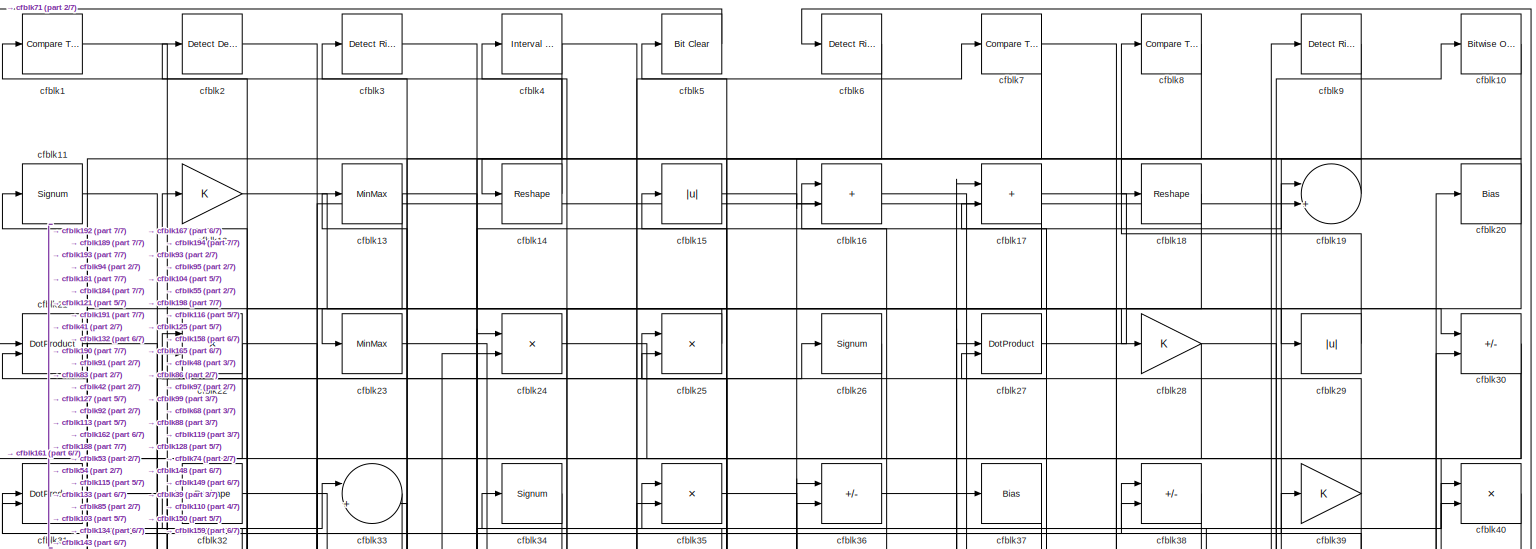
[diagram: root canvas - part 1/7, full width, top band]
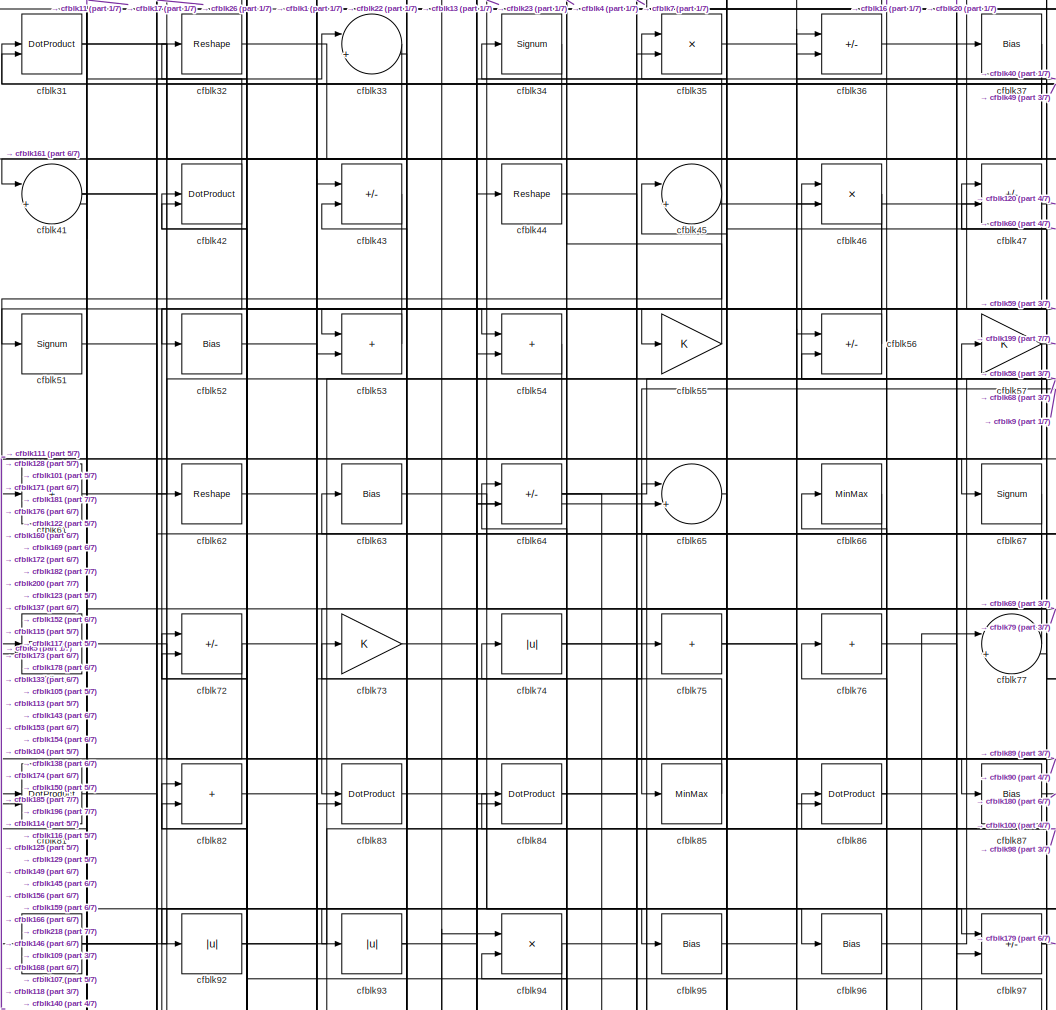
[diagram: root canvas - part 2/7, top center region]
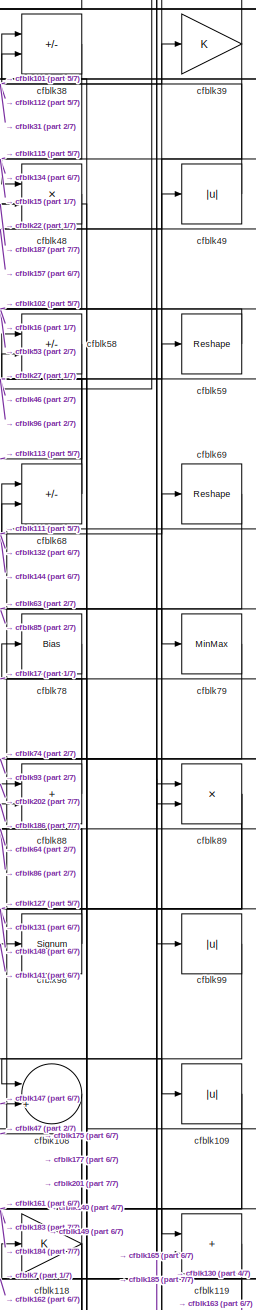
[diagram: root canvas - part 3/7, middle right region]
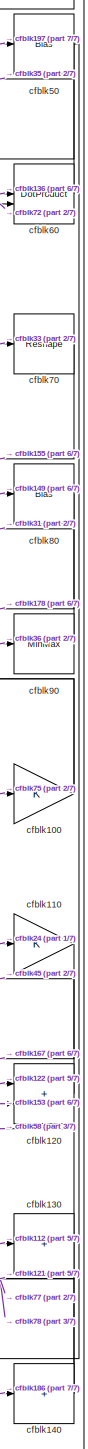
[diagram: root canvas - part 4/7, middle right region]
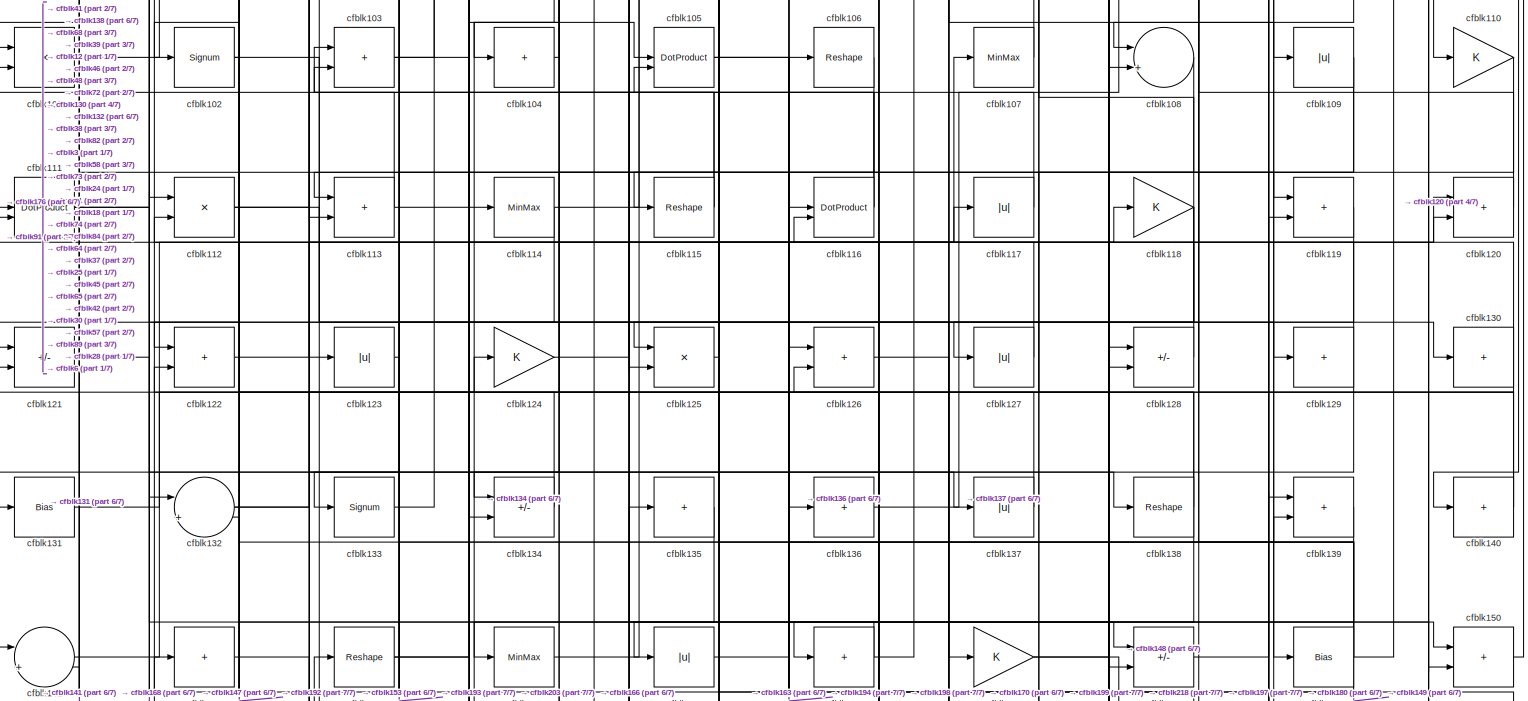
[diagram: root canvas - part 5/7, full width, middle band]
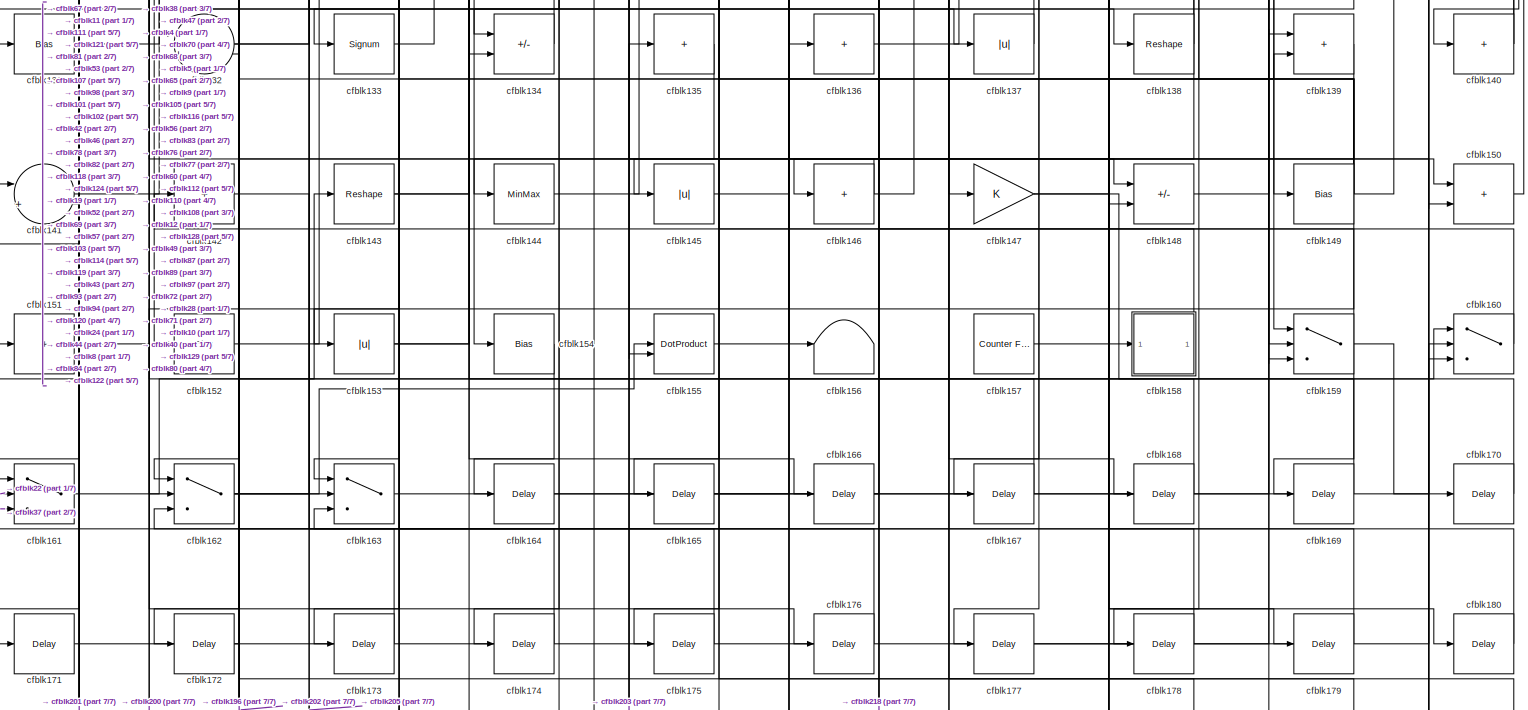
[diagram: root canvas - part 6/7, full width, bottom band]
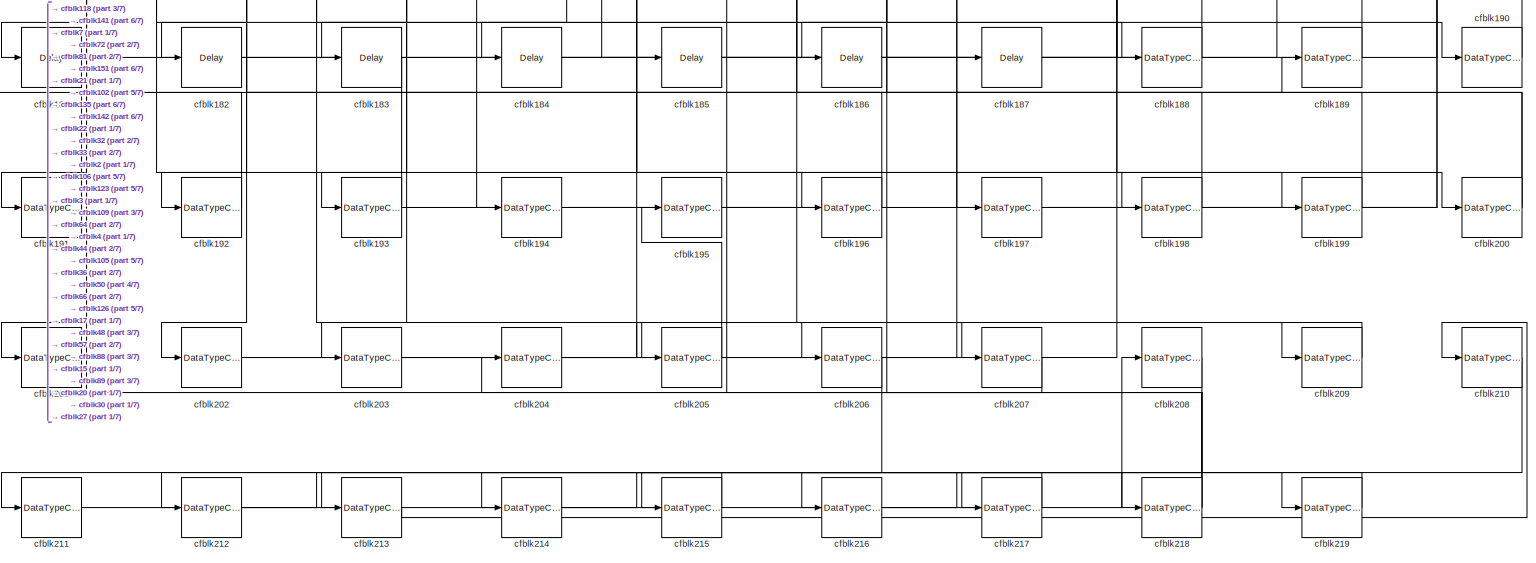
[diagram: root canvas - part 7/7, full width, bottom band]
MODEL slx_9bab4021628a
KIND model
CONFIG AbsTol = auto
CONFIG EnableMultiTasking = off
CONFIG FixedStep = auto
CONFIG MaxStep = auto
CONFIG MinStep = auto
CONFIG RelTol = 1e-3
CONFIG SampleTimeConstraint = Unconstrained
CONFIG SolverName = VariableStepAuto
CONFIG StartTime = 0.0
CONFIG StopTime = 10.0
BLOCK [Reference] cfblk1  REF=hdlsllib/Logic and Bit
Operations/Compare
To Constant
  SourceBlock = hdlsllib/Logic and Bit\nOperations/Compare\nTo Constant
  SourceType = Compare To Constant
BLOCK [Reference] cfblk10  REF=simulink/Logic and Bit
Operations/Bitwise
Operator
  LibrarySourceBlock = hdlsllib/Logic and Bit\nOperations/Bitwise\nOperator
  SourceBlock = simulink/Logic and Bit\nOperations/Bitwise\nOperator
  SourceType = Bitwise Operator
BLOCK [Gain] cfblk100
BLOCK [Product] cfblk101
  Inputs = */
  RndMeth = Zero
  SaturateOnIntegerOverflow = on
BLOCK [Signum] cfblk102
BLOCK [Sum] cfblk103
  IconShape = rectangular
BLOCK [Sum] cfblk104
  IconShape = rectangular
  Inputs = +
BLOCK [DotProduct] cfblk105
  OutDataTypeStr = Inherit: Inherit via internal rule
BLOCK [Reshape] cfblk106
BLOCK [MinMax] cfblk107
BLOCK [Sum] cfblk108
  Inputs = |++
BLOCK [Abs] cfblk109
  SaturateOnIntegerOverflow = off
BLOCK [Signum] cfblk11
BLOCK [Gain] cfblk110
BLOCK [DotProduct] cfblk111
  OutDataTypeStr = Inherit: Inherit via internal rule
BLOCK [Product] cfblk112
  Inputs = */
  RndMeth = Zero
  SaturateOnIntegerOverflow = on
BLOCK [Sum] cfblk113
  IconShape = rectangular
BLOCK [MinMax] cfblk114
BLOCK [Reshape] cfblk115
BLOCK [DotProduct] cfblk116
  OutDataTypeStr = Inherit: Inherit via internal rule
BLOCK [Abs] cfblk117
  SaturateOnIntegerOverflow = off
BLOCK [Gain] cfblk118
BLOCK [Sum] cfblk119
  IconShape = rectangular
BLOCK [Gain] cfblk12
BLOCK [Sum] cfblk120
  IconShape = rectangular
BLOCK [Sum] cfblk121
  IconShape = rectangular
  Inputs = +-
BLOCK [Sum] cfblk122
  IconShape = rectangular
BLOCK [Abs] cfblk123
  SaturateOnIntegerOverflow = off
BLOCK [Gain] cfblk124
BLOCK [Product] cfblk125
  Inputs = */
  RndMeth = Zero
  SaturateOnIntegerOverflow = on
BLOCK [Sum] cfblk126
  IconShape = rectangular
BLOCK [Abs] cfblk127
  SaturateOnIntegerOverflow = off
BLOCK [Sum] cfblk128
  IconShape = rectangular
  Inputs = +-
BLOCK [Sum] cfblk129
  IconShape = rectangular
  Inputs = +
BLOCK [MinMax] cfblk13
BLOCK [Sum] cfblk130
  IconShape = rectangular
  Inputs = +
BLOCK [Bias] cfblk131
  Bias = 0.0
  SaturateOnIntegerOverflow = off
BLOCK [Sum] cfblk132
  Inputs = |++
BLOCK [Signum] cfblk133
BLOCK [Sum] cfblk134
  IconShape = rectangular
  Inputs = +-
BLOCK [Sum] cfblk135
  IconShape = rectangular
  Inputs = +
BLOCK [Sum] cfblk136
  IconShape = rectangular
  Inputs = +
BLOCK [Abs] cfblk137
  SaturateOnIntegerOverflow = off
BLOCK [Reshape] cfblk138
BLOCK [Sum] cfblk139
  IconShape = rectangular
BLOCK [Reshape] cfblk14
BLOCK [Sum] cfblk140
  IconShape = rectangular
  Inputs = +
BLOCK [Sum] cfblk141
  Inputs = |++
BLOCK [Sum] cfblk142
  IconShape = rectangular
  Inputs = +
BLOCK [Reshape] cfblk143
BLOCK [MinMax] cfblk144
BLOCK [Abs] cfblk145
  SaturateOnIntegerOverflow = off
BLOCK [Sum] cfblk146
  IconShape = rectangular
  Inputs = +
BLOCK [Gain] cfblk147
BLOCK [Sum] cfblk148
  IconShape = rectangular
  Inputs = +-
BLOCK [Bias] cfblk149
  Bias = 0.0
  SaturateOnIntegerOverflow = off
BLOCK [Abs] cfblk15
  SaturateOnIntegerOverflow = off
BLOCK [Sum] cfblk150
  IconShape = rectangular
BLOCK [Sum] cfblk151
  IconShape = rectangular
  Inputs = +
BLOCK [Bias] cfblk152
  Bias = 0.0
  SaturateOnIntegerOverflow = off
BLOCK [Abs] cfblk153
  SaturateOnIntegerOverflow = off
BLOCK [Bias] cfblk154
  Bias = 0.0
  SaturateOnIntegerOverflow = off
BLOCK [DotProduct] cfblk155
  OutDataTypeStr = Inherit: Inherit via internal rule
BLOCK [Terminator] cfblk156
BLOCK [Reference] cfblk157  REF=hdlsllib/Sources/Counter
Free-Running
  SourceBlock = hdlsllib/Sources/Counter\nFree-Running
  SourceType = Counter Free-Running
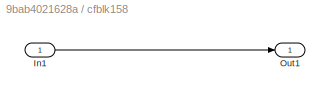
BLOCK [SubSystem] cfblk158
  LibrarySourceBlock = hdlsllib/Ports &\nSubsystems/Subsystem
BLOCK [Inport] cfblk158/In1
BLOCK [Outport] cfblk158/Out1
BLOCK [Switch] cfblk159
  InputSameDT = off
  SaturateOnIntegerOverflow = off
BLOCK [Sum] cfblk16
  IconShape = rectangular
BLOCK [Switch] cfblk160
  InputSameDT = off
  SaturateOnIntegerOverflow = off
BLOCK [Switch] cfblk161
  InputSameDT = off
  SaturateOnIntegerOverflow = off
BLOCK [Switch] cfblk162
  InputSameDT = off
  SaturateOnIntegerOverflow = off
BLOCK [Switch] cfblk163
  InputSameDT = off
  SaturateOnIntegerOverflow = off
BLOCK [Delay] cfblk164
  InputPortMap = u0
  SampleTime = 1
BLOCK [Delay] cfblk165
  InputPortMap = u0
  SampleTime = 1
BLOCK [Delay] cfblk166
  InputPortMap = u0
  SampleTime = 1
BLOCK [Delay] cfblk167
  InputPortMap = u0
  SampleTime = 1
BLOCK [Delay] cfblk168
  InputPortMap = u0
  SampleTime = 1
BLOCK [Delay] cfblk169
  InputPortMap = u0
  SampleTime = 1
BLOCK [Sum] cfblk17
  IconShape = rectangular
BLOCK [Delay] cfblk170
  InputPortMap = u0
  SampleTime = 1
BLOCK [Delay] cfblk171
  InputPortMap = u0
  SampleTime = 1
BLOCK [Delay] cfblk172
  InputPortMap = u0
  SampleTime = 1
BLOCK [Delay] cfblk173
  InputPortMap = u0
  SampleTime = 1
BLOCK [Delay] cfblk174
  InputPortMap = u0
  SampleTime = 1
BLOCK [Delay] cfblk175
  InputPortMap = u0
  SampleTime = 1
BLOCK [Delay] cfblk176
  InputPortMap = u0
  SampleTime = 1
BLOCK [Delay] cfblk177
  InputPortMap = u0
  SampleTime = 1
BLOCK [Delay] cfblk178
  InputPortMap = u0
  SampleTime = 1
BLOCK [Delay] cfblk179
  InputPortMap = u0
  SampleTime = 1
BLOCK [Reshape] cfblk18
BLOCK [Delay] cfblk180
  InputPortMap = u0
  SampleTime = 1
BLOCK [Delay] cfblk181
  InputPortMap = u0
  SampleTime = 1
BLOCK [Delay] cfblk182
  InputPortMap = u0
  SampleTime = 1
BLOCK [Delay] cfblk183
  InputPortMap = u0
  SampleTime = 1
BLOCK [Delay] cfblk184
  InputPortMap = u0
  SampleTime = 1
BLOCK [Delay] cfblk185
  InputPortMap = u0
  SampleTime = 1
BLOCK [Delay] cfblk186
  InputPortMap = u0
  SampleTime = 1
BLOCK [Delay] cfblk187
  InputPortMap = u0
  SampleTime = 1
BLOCK [DataTypeConversion] cfblk188
  OutDataTypeStr = uint8
  RndMeth = Floor
  SaturateOnIntegerOverflow = off
BLOCK [DataTypeConversion] cfblk189
  OutDataTypeStr = uint8
  RndMeth = Floor
  SaturateOnIntegerOverflow = off
BLOCK [Sum] cfblk19
  Inputs = |++
BLOCK [DataTypeConversion] cfblk190
  OutDataTypeStr = uint8
  RndMeth = Floor
  SaturateOnIntegerOverflow = off
BLOCK [DataTypeConversion] cfblk191
  OutDataTypeStr = uint8
  RndMeth = Floor
  SaturateOnIntegerOverflow = off
BLOCK [DataTypeConversion] cfblk192
  OutDataTypeStr = uint8
  RndMeth = Floor
  SaturateOnIntegerOverflow = off
BLOCK [DataTypeConversion] cfblk193
  RndMeth = Floor
  SaturateOnIntegerOverflow = off
BLOCK [DataTypeConversion] cfblk194
  OutDataTypeStr = uint8
  RndMeth = Floor
  SaturateOnIntegerOverflow = off
BLOCK [DataTypeConversion] cfblk195
  RndMeth = Floor
  SaturateOnIntegerOverflow = off
BLOCK [DataTypeConversion] cfblk196
  OutDataTypeStr = uint8
  RndMeth = Floor
  SaturateOnIntegerOverflow = off
BLOCK [DataTypeConversion] cfblk197
  OutDataTypeStr = uint8
  RndMeth = Floor
  SaturateOnIntegerOverflow = off
BLOCK [DataTypeConversion] cfblk198
  OutDataTypeStr = uint8
  RndMeth = Floor
  SaturateOnIntegerOverflow = off
BLOCK [DataTypeConversion] cfblk199
  OutDataTypeStr = uint8
  RndMeth = Floor
  SaturateOnIntegerOverflow = off
BLOCK [Reference] cfblk2  REF=simulink/Logic and Bit
Operations/Detect
Decrease
  LibrarySourceBlock = hdlsllib/Logic and Bit\nOperations/Detect\nDecrease
  SourceBlock = simulink/Logic and Bit\nOperations/Detect\nDecrease
  SourceType = Detect Decrease
BLOCK [Bias] cfblk20
  Bias = 0.0
  SaturateOnIntegerOverflow = off
BLOCK [DataTypeConversion] cfblk200
  RndMeth = Floor
  SaturateOnIntegerOverflow = off
BLOCK [DataTypeConversion] cfblk201
  OutDataTypeStr = uint8
  RndMeth = Floor
  SaturateOnIntegerOverflow = off
BLOCK [DataTypeConversion] cfblk202
  RndMeth = Floor
  SaturateOnIntegerOverflow = off
BLOCK [DataTypeConversion] cfblk203
  OutDataTypeStr = uint8
  RndMeth = Floor
  SaturateOnIntegerOverflow = off
BLOCK [DataTypeConversion] cfblk204
  RndMeth = Floor
  SaturateOnIntegerOverflow = off
BLOCK [DataTypeConversion] cfblk205
  OutDataTypeStr = uint8
  RndMeth = Floor
  SaturateOnIntegerOverflow = off
BLOCK [DataTypeConversion] cfblk206
  RndMeth = Floor
  SaturateOnIntegerOverflow = off
BLOCK [DataTypeConversion] cfblk207
  OutDataTypeStr = uint8
  RndMeth = Floor
  SaturateOnIntegerOverflow = off
BLOCK [DataTypeConversion] cfblk208
  RndMeth = Floor
  SaturateOnIntegerOverflow = off
BLOCK [DataTypeConversion] cfblk209
  OutDataTypeStr = uint8
  RndMeth = Floor
  SaturateOnIntegerOverflow = off
BLOCK [DotProduct] cfblk21
  OutDataTypeStr = Inherit: Inherit via internal rule
BLOCK [DataTypeConversion] cfblk210
  RndMeth = Floor
  SaturateOnIntegerOverflow = off
BLOCK [DataTypeConversion] cfblk211
  OutDataTypeStr = uint8
  RndMeth = Floor
  SaturateOnIntegerOverflow = off
BLOCK [DataTypeConversion] cfblk212
  RndMeth = Floor
  SaturateOnIntegerOverflow = off
BLOCK [DataTypeConversion] cfblk213
  OutDataTypeStr = uint8
  RndMeth = Floor
  SaturateOnIntegerOverflow = off
BLOCK [DataTypeConversion] cfblk214
  RndMeth = Floor
  SaturateOnIntegerOverflow = off
BLOCK [DataTypeConversion] cfblk215
  OutDataTypeStr = uint8
  RndMeth = Floor
  SaturateOnIntegerOverflow = off
BLOCK [DataTypeConversion] cfblk216
  RndMeth = Floor
  SaturateOnIntegerOverflow = off
BLOCK [DataTypeConversion] cfblk217
  OutDataTypeStr = uint8
  RndMeth = Floor
  SaturateOnIntegerOverflow = off
BLOCK [DataTypeConversion] cfblk218
  RndMeth = Floor
  SaturateOnIntegerOverflow = off
BLOCK [DataTypeConversion] cfblk219
  OutDataTypeStr = uint8
  RndMeth = Floor
  SaturateOnIntegerOverflow = off
BLOCK [Product] cfblk22
  Inputs = */
  RndMeth = Zero
  SaturateOnIntegerOverflow = on
BLOCK [MinMax] cfblk23
BLOCK [Product] cfblk24
  Inputs = */
  RndMeth = Zero
  SaturateOnIntegerOverflow = on
BLOCK [Product] cfblk25
  Inputs = */
  RndMeth = Zero
  SaturateOnIntegerOverflow = on
BLOCK [Signum] cfblk26
BLOCK [DotProduct] cfblk27
  OutDataTypeStr = Inherit: Inherit via internal rule
BLOCK [Gain] cfblk28
BLOCK [Abs] cfblk29
  SaturateOnIntegerOverflow = off
BLOCK [Reference] cfblk3  REF=hdlsllib/Logic and Bit
Operations/Detect Rise
Positive
  SourceBlock = hdlsllib/Logic and Bit\nOperations/Detect Rise\nPositive
  SourceType = Detect Rise Positive
BLOCK [Sum] cfblk30
  IconShape = rectangular
  Inputs = +-
BLOCK [DotProduct] cfblk31
  OutDataTypeStr = Inherit: Inherit via internal rule
BLOCK [Reshape] cfblk32
BLOCK [Sum] cfblk33
  Inputs = |++
BLOCK [Signum] cfblk34
BLOCK [Product] cfblk35
  Inputs = */
  RndMeth = Zero
  SaturateOnIntegerOverflow = on
BLOCK [Sum] cfblk36
  IconShape = rectangular
  Inputs = +-
BLOCK [Bias] cfblk37
  Bias = 0.0
  SaturateOnIntegerOverflow = off
BLOCK [Sum] cfblk38
  IconShape = rectangular
  Inputs = +-
BLOCK [Gain] cfblk39
BLOCK [Reference] cfblk4  REF=hdlsllib/Logic and Bit
Operations/Interval Test
  SourceBlock = hdlsllib/Logic and Bit\nOperations/Interval Test
  SourceType = Interval Test
BLOCK [Product] cfblk40
  Inputs = */
  RndMeth = Zero
  SaturateOnIntegerOverflow = on
BLOCK [Sum] cfblk41
  Inputs = |++
BLOCK [DotProduct] cfblk42
  OutDataTypeStr = Inherit: Inherit via internal rule
BLOCK [Sum] cfblk43
  IconShape = rectangular
  Inputs = +-
BLOCK [Reshape] cfblk44
BLOCK [Sum] cfblk45
  Inputs = |++
BLOCK [Product] cfblk46
  Inputs = */
  RndMeth = Zero
  SaturateOnIntegerOverflow = on
BLOCK [Sum] cfblk47
  IconShape = rectangular
  Inputs = +-
BLOCK [Product] cfblk48
  Inputs = */
  RndMeth = Zero
  SaturateOnIntegerOverflow = on
BLOCK [Abs] cfblk49
  SaturateOnIntegerOverflow = off
BLOCK [Reference] cfblk5  REF=simulink/Logic and Bit
Operations/Bit Clear
  LibrarySourceBlock = hdlsllib/Logic and Bit\nOperations/Bit Clear
  SourceBlock = simulink/Logic and Bit\nOperations/Bit Clear
  SourceType = Bit Clear
BLOCK [Bias] cfblk50
  Bias = 0.0
  SaturateOnIntegerOverflow = off
BLOCK [Signum] cfblk51
BLOCK [Bias] cfblk52
  Bias = 0.0
  SaturateOnIntegerOverflow = off
BLOCK [Sum] cfblk53
  IconShape = rectangular
BLOCK [Sum] cfblk54
  IconShape = rectangular
BLOCK [Gain] cfblk55
BLOCK [Sum] cfblk56
  IconShape = rectangular
  Inputs = +-
BLOCK [Gain] cfblk57
BLOCK [Sum] cfblk58
  IconShape = rectangular
  Inputs = +-
BLOCK [Reshape] cfblk59
BLOCK [Reference] cfblk6  REF=hdlsllib/Logic and Bit
Operations/Detect Rise
Nonnegative
  SourceBlock = hdlsllib/Logic and Bit\nOperations/Detect Rise\nNonnegative
  SourceType = Detect Rise Nonnegative
BLOCK [DotProduct] cfblk60
  OutDataTypeStr = Inherit: Inherit via internal rule
BLOCK [Sum] cfblk61
  IconShape = rectangular
  Inputs = +
BLOCK [Reshape] cfblk62
BLOCK [Bias] cfblk63
  Bias = 0.0
  SaturateOnIntegerOverflow = off
BLOCK [Sum] cfblk64
  IconShape = rectangular
  Inputs = +-
BLOCK [Sum] cfblk65
  Inputs = |++
BLOCK [MinMax] cfblk66
BLOCK [Signum] cfblk67
BLOCK [Sum] cfblk68
  IconShape = rectangular
  Inputs = +-
BLOCK [Reshape] cfblk69
BLOCK [Reference] cfblk7  REF=hdlsllib/Logic and Bit
Operations/Compare
To Constant
  SourceBlock = hdlsllib/Logic and Bit\nOperations/Compare\nTo Constant
  SourceType = Compare To Constant
BLOCK [Reshape] cfblk70
BLOCK [DotProduct] cfblk71
  OutDataTypeStr = Inherit: Inherit via internal rule
BLOCK [Sum] cfblk72
  IconShape = rectangular
  Inputs = +-
BLOCK [Gain] cfblk73
BLOCK [Abs] cfblk74
  SaturateOnIntegerOverflow = off
BLOCK [Sum] cfblk75
  IconShape = rectangular
  Inputs = +
BLOCK [Sum] cfblk76
  IconShape = rectangular
  Inputs = +
BLOCK [Sum] cfblk77
  Inputs = |++
BLOCK [Bias] cfblk78
  Bias = 0.0
  SaturateOnIntegerOverflow = off
BLOCK [MinMax] cfblk79
BLOCK [Reference] cfblk8  REF=hdlsllib/Logic and Bit
Operations/Compare
To Zero
  SourceBlock = hdlsllib/Logic and Bit\nOperations/Compare\nTo Zero
  SourceType = Compare To Zero
BLOCK [Bias] cfblk80
  Bias = 0.0
  SaturateOnIntegerOverflow = off
BLOCK [DotProduct] cfblk81
  OutDataTypeStr = Inherit: Inherit via internal rule
BLOCK [Sum] cfblk82
  IconShape = rectangular
BLOCK [DotProduct] cfblk83
  OutDataTypeStr = Inherit: Inherit via internal rule
BLOCK [DotProduct] cfblk84
  OutDataTypeStr = Inherit: Inherit via internal rule
BLOCK [MinMax] cfblk85
BLOCK [DotProduct] cfblk86
  OutDataTypeStr = Inherit: Inherit via internal rule
BLOCK [Bias] cfblk87
  Bias = 0.0
  SaturateOnIntegerOverflow = off
BLOCK [Sum] cfblk88
  IconShape = rectangular
BLOCK [Product] cfblk89
  Inputs = */
  RndMeth = Zero
  SaturateOnIntegerOverflow = on
BLOCK [Reference] cfblk9  REF=hdlsllib/Logic and Bit
Operations/Detect Rise
Nonnegative
  SourceBlock = hdlsllib/Logic and Bit\nOperations/Detect Rise\nNonnegative
  SourceType = Detect Rise Nonnegative
BLOCK [MinMax] cfblk90
BLOCK [MinMax] cfblk91
BLOCK [Abs] cfblk92
  SaturateOnIntegerOverflow = off
BLOCK [Abs] cfblk93
  SaturateOnIntegerOverflow = off
BLOCK [Product] cfblk94
  Inputs = */
  RndMeth = Zero
  SaturateOnIntegerOverflow = on
BLOCK [Bias] cfblk95
  Bias = 0.0
  SaturateOnIntegerOverflow = off
BLOCK [Bias] cfblk96
  Bias = 0.0
  SaturateOnIntegerOverflow = off
BLOCK [Sum] cfblk97
  IconShape = rectangular
  Inputs = +-
BLOCK [Signum] cfblk98
BLOCK [Abs] cfblk99
  SaturateOnIntegerOverflow = off
NET cfblk100:1 -> cfblk33:2, cfblk70:1
LINE cfblk101:1 -> cfblk39:1
NET cfblk102:1 -> cfblk147:1, cfblk192:1
NET cfblk103:1 -> cfblk166:1, cfblk24:2
LINE cfblk104:1 -> cfblk84:1
NET cfblk105:1 -> cfblk136:1, cfblk150:1
LINE cfblk106:1 -> cfblk193:1
LINE cfblk107:1 -> cfblk42:1
LINE cfblk108:1 -> cfblk161:1
NET cfblk109:1 -> cfblk183:1, cfblk184:1
LINE cfblk10:1 -> cfblk149:1
LINE cfblk110:1 -> cfblk167:1
NET cfblk111:1 -> cfblk138:1, cfblk68:2
NET cfblk112:1 -> cfblk130:1, cfblk38:1
NET cfblk113:1 -> cfblk103:1, cfblk65:2
NET cfblk114:1 -> cfblk153:1, cfblk37:1
NET cfblk115:1 -> cfblk3:1, cfblk72:1
NET cfblk116:1 -> cfblk25:2, cfblk74:1
LINE cfblk117:1 -> cfblk73:1
NET cfblk118:1 -> cfblk175:1, cfblk177:1, cfblk201:1, cfblk47:1
LINE cfblk119:1 -> cfblk163:1
LINE cfblk11:1 -> cfblk132:1
LINE cfblk120:1 -> cfblk45:2
LINE cfblk121:1 -> cfblk148:1
LINE cfblk122:1 -> cfblk120:1
LINE cfblk123:1 -> cfblk203:1
LINE cfblk124:1 -> cfblk117:1
LINE cfblk125:1 -> cfblk25:1
LINE cfblk126:1 -> cfblk197:1
LINE cfblk127:1 -> cfblk12:1
LINE cfblk128:1 -> cfblk91:1
NET cfblk129:1 -> cfblk141:2, cfblk45:1
LINE cfblk12:1 -> cfblk158:1
NET cfblk130:1 -> cfblk121:2, cfblk58:2
LINE cfblk131:1 -> cfblk107:1
NET cfblk132:1 -> cfblk124:1, cfblk69:1
LINE cfblk133:1 -> cfblk94:1
LINE cfblk134:1 -> cfblk122:2
LINE cfblk135:1 -> cfblk202:1
LINE cfblk136:1 -> cfblk60:1
LINE cfblk137:1 -> cfblk112:2
NET cfblk138:1 -> cfblk145:1, cfblk72:2, cfblk94:2
LINE cfblk139:1 -> cfblk146:1
NET cfblk13:1 -> cfblk28:1, cfblk92:1
NET cfblk140:1 -> cfblk77:2, cfblk78:1
LINE cfblk141:1 -> cfblk98:1
LINE cfblk142:1 -> cfblk205:1
NET cfblk143:1 -> cfblk19:1, cfblk84:2
LINE cfblk144:1 -> cfblk68:1
LINE cfblk145:1 -> cfblk56:1
NET cfblk146:1 -> cfblk144:1, cfblk77:1
NET cfblk147:1 -> cfblk108:2, cfblk160:1
LINE cfblk148:1 -> cfblk10:1
NET cfblk149:1 -> cfblk101:2, cfblk103:2, cfblk162:2, cfblk38:2, cfblk65:1, cfblk80:1
LINE cfblk14:1 -> cfblk1:1
LINE cfblk150:1 -> cfblk6:1
LINE cfblk151:1 -> cfblk200:1
LINE cfblk152:1 -> cfblk57:1
NET cfblk153:1 -> cfblk120:2, cfblk44:1
LINE cfblk154:1 -> cfblk164:1
LINE cfblk155:1 -> cfblk139:2
LINE cfblk157:1 -> cfblk49:1
LINE cfblk158/In1:1 -> cfblk158/Out1:1
LINE cfblk158:1 -> cfblk5:1
NET cfblk159:1 -> cfblk169:1, cfblk170:1, cfblk76:1
LINE cfblk15:1 -> cfblk48:1
LINE cfblk160:1 -> cfblk82:1
LINE cfblk161:1 -> cfblk143:1
NET cfblk162:1 -> cfblk118:1, cfblk155:1, cfblk19:2
LINE cfblk163:1 -> cfblk116:1
LINE cfblk164:1 -> cfblk160:2
LINE cfblk165:1 -> cfblk119:2
LINE cfblk166:1 -> cfblk56:2
LINE cfblk167:1 -> cfblk24:1
LINE cfblk168:1 -> cfblk112:1
LINE cfblk169:1 -> cfblk82:2
LINE cfblk16:1 -> cfblk99:1
LINE cfblk170:1 -> cfblk116:2
LINE cfblk171:1 -> cfblk139:1
LINE cfblk172:1 -> cfblk42:2
LINE cfblk173:1 -> cfblk162:3
LINE cfblk174:1 -> cfblk132:2
LINE cfblk175:1 -> cfblk163:3
LINE cfblk176:1 -> cfblk111:1
LINE cfblk177:1 -> cfblk160:3
LINE cfblk178:1 -> cfblk43:2
LINE cfblk179:1 -> cfblk163:2
NET cfblk17:1 -> cfblk30:1, cfblk41:2
LINE cfblk180:1 -> cfblk128:1
LINE cfblk181:1 -> cfblk17:1
LINE cfblk182:1 -> cfblk36:2
LINE cfblk183:1 -> cfblk189:1
LINE cfblk184:1 -> cfblk30:2
LINE cfblk185:1 -> cfblk89:1
LINE cfblk186:1 -> cfblk88:2
LINE cfblk187:1 -> cfblk48:2
LINE cfblk188:1 -> cfblk15:1
LINE cfblk189:1 -> cfblk2:1
LINE cfblk18:1 -> cfblk104:1
LINE cfblk190:1 -> cfblk27:1
LINE cfblk191:1 -> cfblk21:1
LINE cfblk192:1 -> cfblk21:2
NET cfblk193:1 -> cfblk20:1, cfblk22:2
LINE cfblk194:1 -> cfblk106:1
LINE cfblk195:1 -> cfblk207:1
LINE cfblk196:1 -> cfblk142:1
LINE cfblk197:1 -> cfblk50:1
LINE cfblk198:1 -> cfblk126:1
LINE cfblk199:1 -> cfblk126:2
LINE cfblk19:1 -> cfblk14:1
LINE cfblk1:1 -> cfblk83:2
NET cfblk200:1 -> cfblk32:1, cfblk81:2
LINE cfblk201:1 -> cfblk151:1
NET cfblk202:1 -> cfblk187:1, cfblk88:1
LINE cfblk203:1 -> cfblk135:1
LINE cfblk204:1 -> cfblk209:1
LINE cfblk205:1 -> cfblk195:1
LINE cfblk206:1 -> cfblk211:1
LINE cfblk207:1 -> cfblk204:1
LINE cfblk208:1 -> cfblk213:1
LINE cfblk209:1 -> cfblk206:1
NET cfblk20:1 -> cfblk18:1, cfblk97:2
LINE cfblk210:1 -> cfblk215:1
LINE cfblk211:1 -> cfblk208:1
LINE cfblk212:1 -> cfblk217:1
LINE cfblk213:1 -> cfblk210:1
LINE cfblk214:1 -> cfblk219:1
LINE cfblk215:1 -> cfblk212:1
LINE cfblk216:1 -> cfblk218:1
LINE cfblk217:1 -> cfblk214:1
NET cfblk218:1 -> cfblk105:2, cfblk141:1, cfblk66:1
LINE cfblk219:1 -> cfblk216:1
LINE cfblk21:1 -> cfblk190:1
NET cfblk22:1 -> cfblk161:2, cfblk54:1
LINE cfblk23:1 -> cfblk95:1
LINE cfblk24:1 -> cfblk110:1
LINE cfblk25:1 -> cfblk23:1
LINE cfblk26:1 -> cfblk53:2
LINE cfblk27:1 -> cfblk29:1
NET cfblk28:1 -> cfblk121:1, cfblk159:2
LINE cfblk29:1 -> cfblk8:1
LINE cfblk2:1 -> cfblk188:1
NET cfblk30:1 -> cfblk113:2, cfblk128:2
NET cfblk31:1 -> cfblk114:1, cfblk54:2
LINE cfblk32:1 -> cfblk46:2
LINE cfblk33:1 -> cfblk182:1
LINE cfblk34:1 -> cfblk61:1
LINE cfblk35:1 -> cfblk67:1
LINE cfblk36:1 -> cfblk90:1
NET cfblk37:1 -> cfblk161:3, cfblk41:1
LINE cfblk38:1 -> cfblk134:1
NET cfblk39:1 -> cfblk115:1, cfblk22:1
LINE cfblk3:1 -> cfblk194:1
LINE cfblk40:1 -> cfblk159:1
NET cfblk41:1 -> cfblk101:1, cfblk33:1, cfblk62:1
NET cfblk42:1 -> cfblk11:1, cfblk51:1
LINE cfblk43:1 -> cfblk52:1
LINE cfblk44:1 -> cfblk196:1
NET cfblk45:1 -> cfblk34:1, cfblk71:1
NET cfblk46:1 -> cfblk122:1, cfblk172:1
LINE cfblk47:1 -> cfblk174:1
LINE cfblk48:1 -> cfblk102:1
LINE cfblk49:1 -> cfblk31:2
NET cfblk4:1 -> cfblk133:1, cfblk198:1
NET cfblk50:1 -> cfblk140:1, cfblk186:1
LINE cfblk51:1 -> cfblk97:1
LINE cfblk52:1 -> cfblk137:1
LINE cfblk53:1 -> cfblk152:1
LINE cfblk54:1 -> cfblk81:1
LINE cfblk55:1 -> cfblk4:1
LINE cfblk56:1 -> cfblk55:1
NET cfblk57:1 -> cfblk111:2, cfblk199:1, cfblk64:2
LINE cfblk58:1 -> cfblk113:1
LINE cfblk59:1 -> cfblk53:1
LINE cfblk5:1 -> cfblk71:2
LINE cfblk60:1 -> cfblk35:1
LINE cfblk61:1 -> cfblk35:2
LINE cfblk62:1 -> cfblk43:1
LINE cfblk63:1 -> cfblk79:1
NET cfblk64:1 -> cfblk150:2, cfblk185:1, cfblk58:1
LINE cfblk65:1 -> cfblk125:1
LINE cfblk66:1 -> cfblk83:1
LINE cfblk67:1 -> cfblk171:1
NET cfblk68:1 -> cfblk27:2, cfblk46:1
LINE cfblk69:1 -> cfblk85:1
LINE cfblk6:1 -> cfblk16:2
LINE cfblk70:1 -> cfblk155:2
LINE cfblk71:1 -> cfblk159:3
NET cfblk72:1 -> cfblk181:1, cfblk60:2
LINE cfblk73:1 -> cfblk105:1
NET cfblk74:1 -> cfblk89:2, cfblk9:1
NET cfblk75:1 -> cfblk100:1, cfblk86:2
LINE cfblk76:1 -> cfblk168:1
LINE cfblk77:1 -> cfblk63:1
LINE cfblk78:1 -> cfblk162:1
LINE cfblk79:1 -> cfblk93:1
NET cfblk7:1 -> cfblk119:1, cfblk191:1
LINE cfblk80:1 -> cfblk178:1
LINE cfblk81:1 -> cfblk176:1
LINE cfblk82:1 -> cfblk123:1
LINE cfblk83:1 -> cfblk156:1
NET cfblk84:1 -> cfblk125:2, cfblk87:1
LINE cfblk85:1 -> cfblk13:1
NET cfblk86:1 -> cfblk109:1, cfblk16:1
LINE cfblk87:1 -> cfblk180:1
LINE cfblk88:1 -> cfblk17:2
NET cfblk89:1 -> cfblk127:1, cfblk131:1, cfblk148:2
LINE cfblk8:1 -> cfblk134:2
LINE cfblk90:1 -> cfblk31:1
NET cfblk91:1 -> cfblk129:1, cfblk26:1, cfblk96:1
NET cfblk92:1 -> cfblk36:1, cfblk75:1
NET cfblk93:1 -> cfblk173:1, cfblk40:2
NET cfblk94:1 -> cfblk154:1, cfblk7:1
LINE cfblk95:1 -> cfblk40:1
LINE cfblk96:1 -> cfblk59:1
NET cfblk97:1 -> cfblk179:1, cfblk47:2
NET cfblk98:1 -> cfblk64:1, cfblk86:1
LINE cfblk99:1 -> cfblk108:1
LINE cfblk9:1 -> cfblk165:1
note: NET lines group one-source signal fan-out (src -> all destinations, sorted); 1:1 wires keep LINE
